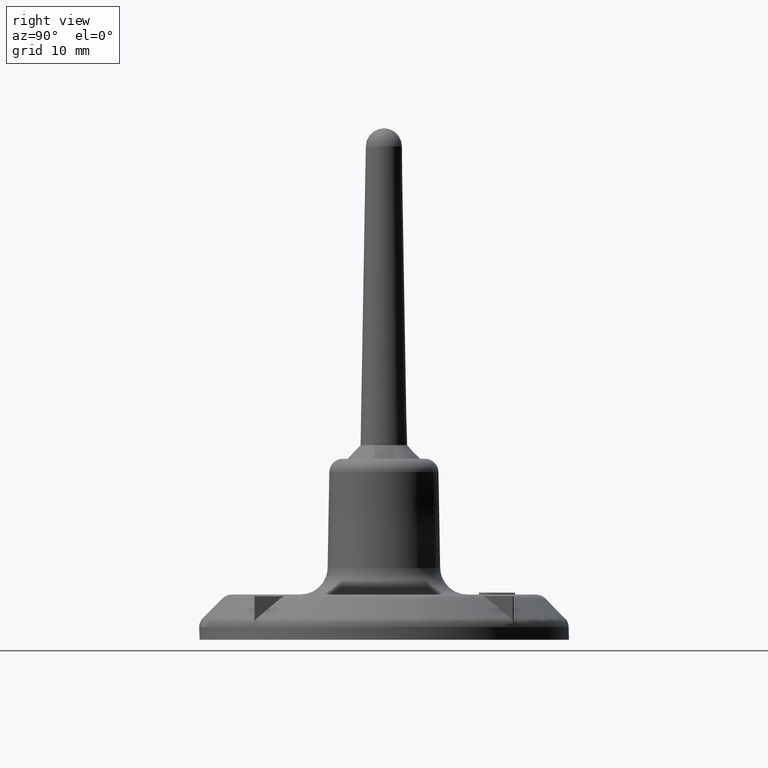
[diagram: clean part render]
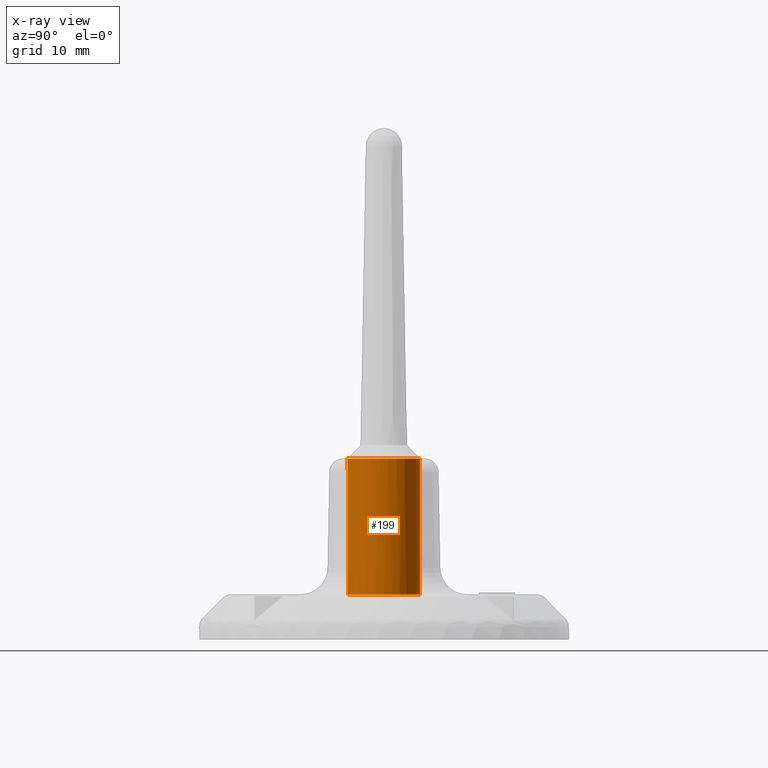
[diagram: x-ray — body ghosted, one internal face saturated and labeled with its STEP entity id]
A machine part, right view, then the same camera in x-ray: the body is ghosted and one INTERNAL B-rep face — a face not visible from any outside direction — is saturated and labeled: STEP entity #199.
In plain terms, the highlighted cylindrical surface (bore or boss wall) has radius 4 mm, axis along (-0, 0, 1).
Its self-contained STEP definition (entity closure, byte-faithful):
#199 = ADVANCED_FACE( '', ( #424, #425 ), #426, .F. );
#424 = FACE_OUTER_BOUND( '', #700, .T. );
#425 = FACE_OUTER_BOUND( '', #701, .T. );
#426 = CYLINDRICAL_SURFACE( '', #702, 4.00000000000000 );
#700 = EDGE_LOOP( '', ( #1403 ) );
#701 = EDGE_LOOP( '', ( #1404 ) );
#702 = AXIS2_PLACEMENT_3D( '', #1405, #1406, #1407 );
#1403 = ORIENTED_EDGE( '', *, *, #1881, .F. );
#1404 = ORIENTED_EDGE( '', *, *, #1884, .T. );
#1405 = CARTESIAN_POINT( '', ( 0.000000000000000, 6.42911502455149E-015, 34.9996280001010 ) );
#1406 = DIRECTION( '', ( -1.12474554136660E-032, 1.83690953073357E-016, 1.00000000000000 ) );
#1407 = DIRECTION( '', ( -1.00000000000000, 0.000000000000000, -1.12474554136660E-032 ) );
#1881 = EDGE_CURVE( '', #2294, #2294, #2295, .T. );
#1884 = EDGE_CURVE( '', #2300, #2300, #2301, .F. );
#2294 = VERTEX_POINT( '', #3030 );
#2295 = CIRCLE( '', #3031, 4.00000000000000 );
#2300 = VERTEX_POINT( '', #3036 );
#2301 = CIRCLE( '', #3037, 4.00000000000000 );
#3030 = CARTESIAN_POINT( '', ( 4.00000000000000, 9.18386432332240E-016, 4.99962800000000 ) );
#3031 = AXIS2_PLACEMENT_3D( '', #3440, #3441, #3442 );
#3036 = CARTESIAN_POINT( '', ( 1.68711831206127E-031, 4.00000000000000, 19.9996280000000 ) );
#3037 = AXIS2_PLACEMENT_3D( '', #3449, #3450, #3451 );
#3440 = CARTESIAN_POINT( '', ( 0.000000000000000, 9.18386432332240E-016, 4.99962800000000 ) );
#3441 = DIRECTION( '', ( -1.12474554136660E-032, -3.31494814237443E-017, 1.00000000000000 ) );
#3442 = DIRECTION( '', ( 1.00000000000000, 0.000000000000000, 1.12474554136660E-032 ) );
#3449 = CARTESIAN_POINT( '', ( 1.68711831206127E-031, 3.67375072843259E-015, 19.9996280000000 ) );
#3450 = DIRECTION( '', ( 1.12474554136660E-032, -1.83690953073357E-016, -1.00000000000000 ) );
#3451 = DIRECTION( '', ( 0.000000000000000, 1.00000000000000, -1.83690953073357E-016 ) );